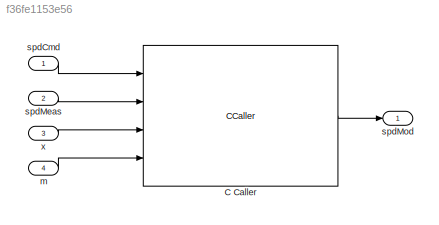
MODEL slx_f36fe1153e56
KIND model
CONFIG AbsTol = auto
CONFIG EnableMultiTasking = off
CONFIG FixedStep = auto
CONFIG MaxStep = auto
CONFIG MinStep = auto
CONFIG RelTol = 1e-3
CONFIG SampleTimeConstraint = Unconstrained
CONFIG Solver = FixedStepDiscrete
CONFIG SolverName = FixedStepDiscrete
CONFIG StartTime = 0.0
CONFIG StopTime = 60
BLOCK [CCaller] C Caller
  FunctionName = speedLimiter
  PortSpecificationStruct = %)30     .    T <   8    (     @         %    "     4    !     0         %  0 "0    $    V    07)G3F%M90  4&]R=$YA;64 4V-O<&4     26YD97@     5'EP90      4VEZ90         .    ,     8    (    !          %    "     $    #     0         0  , ;W5T  X    X    !@    @    $          4    (     0    8    !         !     &    <W!D0VUD   .    .     8    (    !          %    "     $    &     0         0    !@...<+2282ch>
  Ports = [4, 1]
BLOCK [Inport] m
  IconDisplay = Port number
  Port = 4
BLOCK [Inport] spdCmd
  IconDisplay = Port number
BLOCK [Inport] spdMeas
  IconDisplay = Port number
  Port = 2
BLOCK [Outport] spdMod
  IconDisplay = Port number
BLOCK [Inport] x
  IconDisplay = Port number
  Port = 3
LINE C Caller:1 -> spdMod:1
LINE m:1 -> C Caller:4
LINE spdCmd:1 -> C Caller:1
LINE spdMeas:1 -> C Caller:2
LINE x:1 -> C Caller:3
